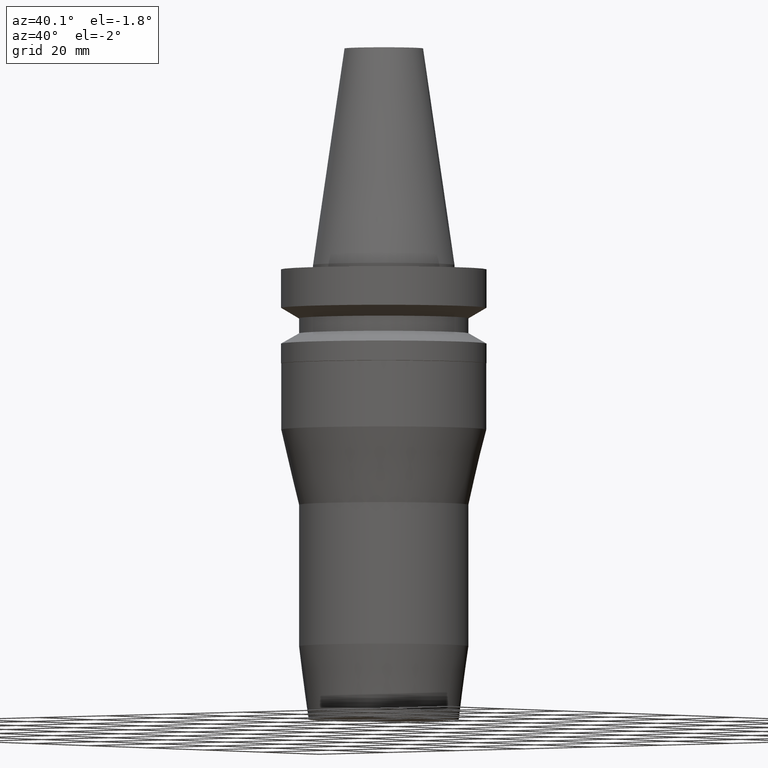
[diagram: clean part render]
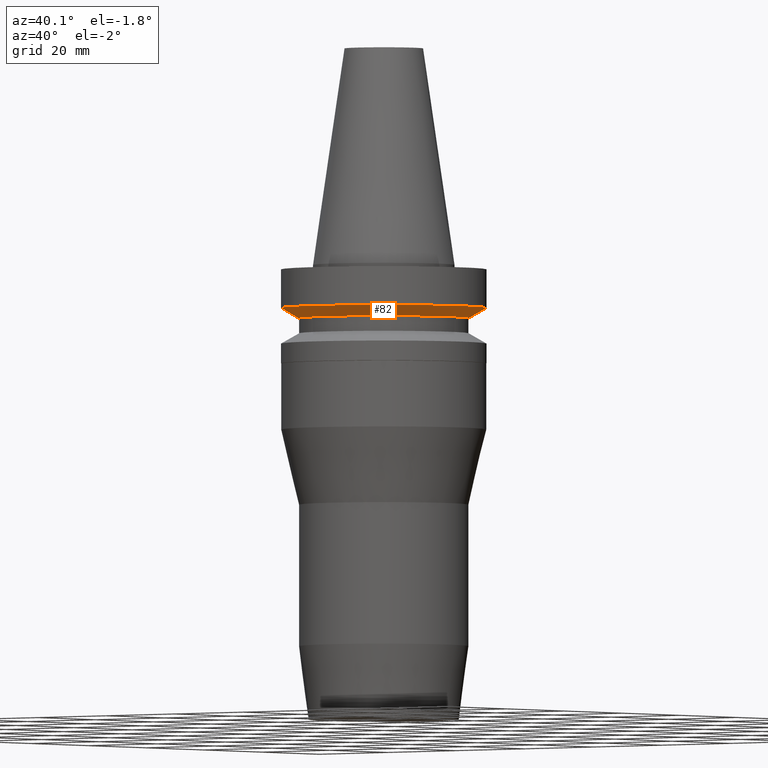
[diagram: same view with one face highlighted and labeled with its STEP entity id]
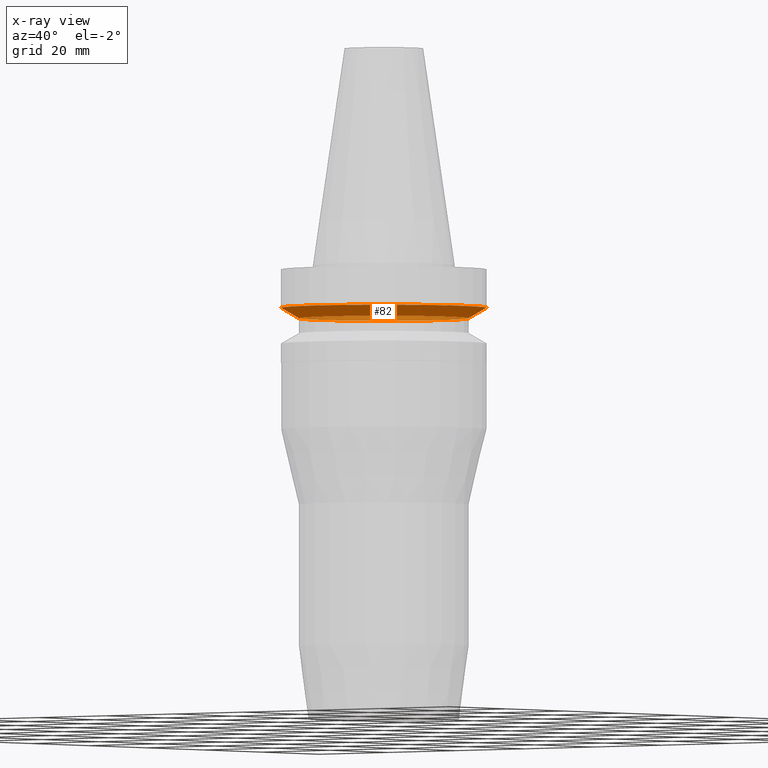
[diagram: x-ray of the same camera — body ghosted, the highlighted face saturated]
A machine part, auxiliary view. The second image highlights one B-rep face of the part: STEP entity #82.
The next image is the same camera in x-ray: the body ghosted, the highlighted face saturated — about 24% of this face is hidden behind the body in this view.
In plain terms, the highlighted conical surface has half-angle 60 deg.
Its self-contained STEP definition (entity closure, byte-faithful):
#82=ADVANCED_FACE('Unnamed[1]',(#189,#190),#191,.T.);
#107=EDGE_CURVE('Unnamed[1]',#229,#229,#230,.T.);
#115=EDGE_CURVE('Unnamed[1]',#240,#240,#241,.T.);
#189=FACE_BOUND('',#325,.T.);
#190=FACE_BOUND('',#326,.T.);
#191=CONICAL_SURFACE('',#327,21.0,1.04719755058881);
#229=VERTEX_POINT('',#375);
#230=CIRCLE('',#376,19.0);
#240=VERTEX_POINT('',#388);
#241=CIRCLE('',#389,23.0);
#325=EDGE_LOOP('',(#465));
#326=EDGE_LOOP('',(#466));
#327=AXIS2_PLACEMENT_3D('',#467,#468,#469);
#375=CARTESIAN_POINT('',(7.29240495619202E-016,19.0,-11.90940108));
#376=AXIS2_PLACEMENT_3D('',#511,#512,#513);
#388=CARTESIAN_POINT('',(5.87830463590729E-016,23.0,-9.59999999999999));
#389=AXIS2_PLACEMENT_3D('',#521,#522,#523);
#465=ORIENTED_EDGE('',*,*,#107,.F.);
#466=ORIENTED_EDGE('',*,*,#115,.T.);
#467=CARTESIAN_POINT('',(6.58535479604966E-016,1.31707095920993E-015,-10.75470054));
#468=DIRECTION('',(-6.12323399573677E-017,-1.22464679914735E-016,1.0));
#469=DIRECTION('',(-1.23259516440783E-032,1.0,1.22464679914735E-016));
#511=CARTESIAN_POINT('',(7.29240495619202E-016,1.4584809912384E-015,-11.90940108));
#512=DIRECTION('',(6.12323399573677E-017,1.22464679914735E-016,-1.0));
#513=DIRECTION('',(-1.23259516440783E-032,1.0,1.22464679914735E-016));
#521=CARTESIAN_POINT('',(5.87830463590729E-016,1.17566092718146E-015,-9.59999999999999));
#522=DIRECTION('',(6.12323399573677E-017,1.22464679914735E-016,-1.0));
#523=DIRECTION('',(-1.23259516440783E-032,1.0,1.22464679914735E-016));